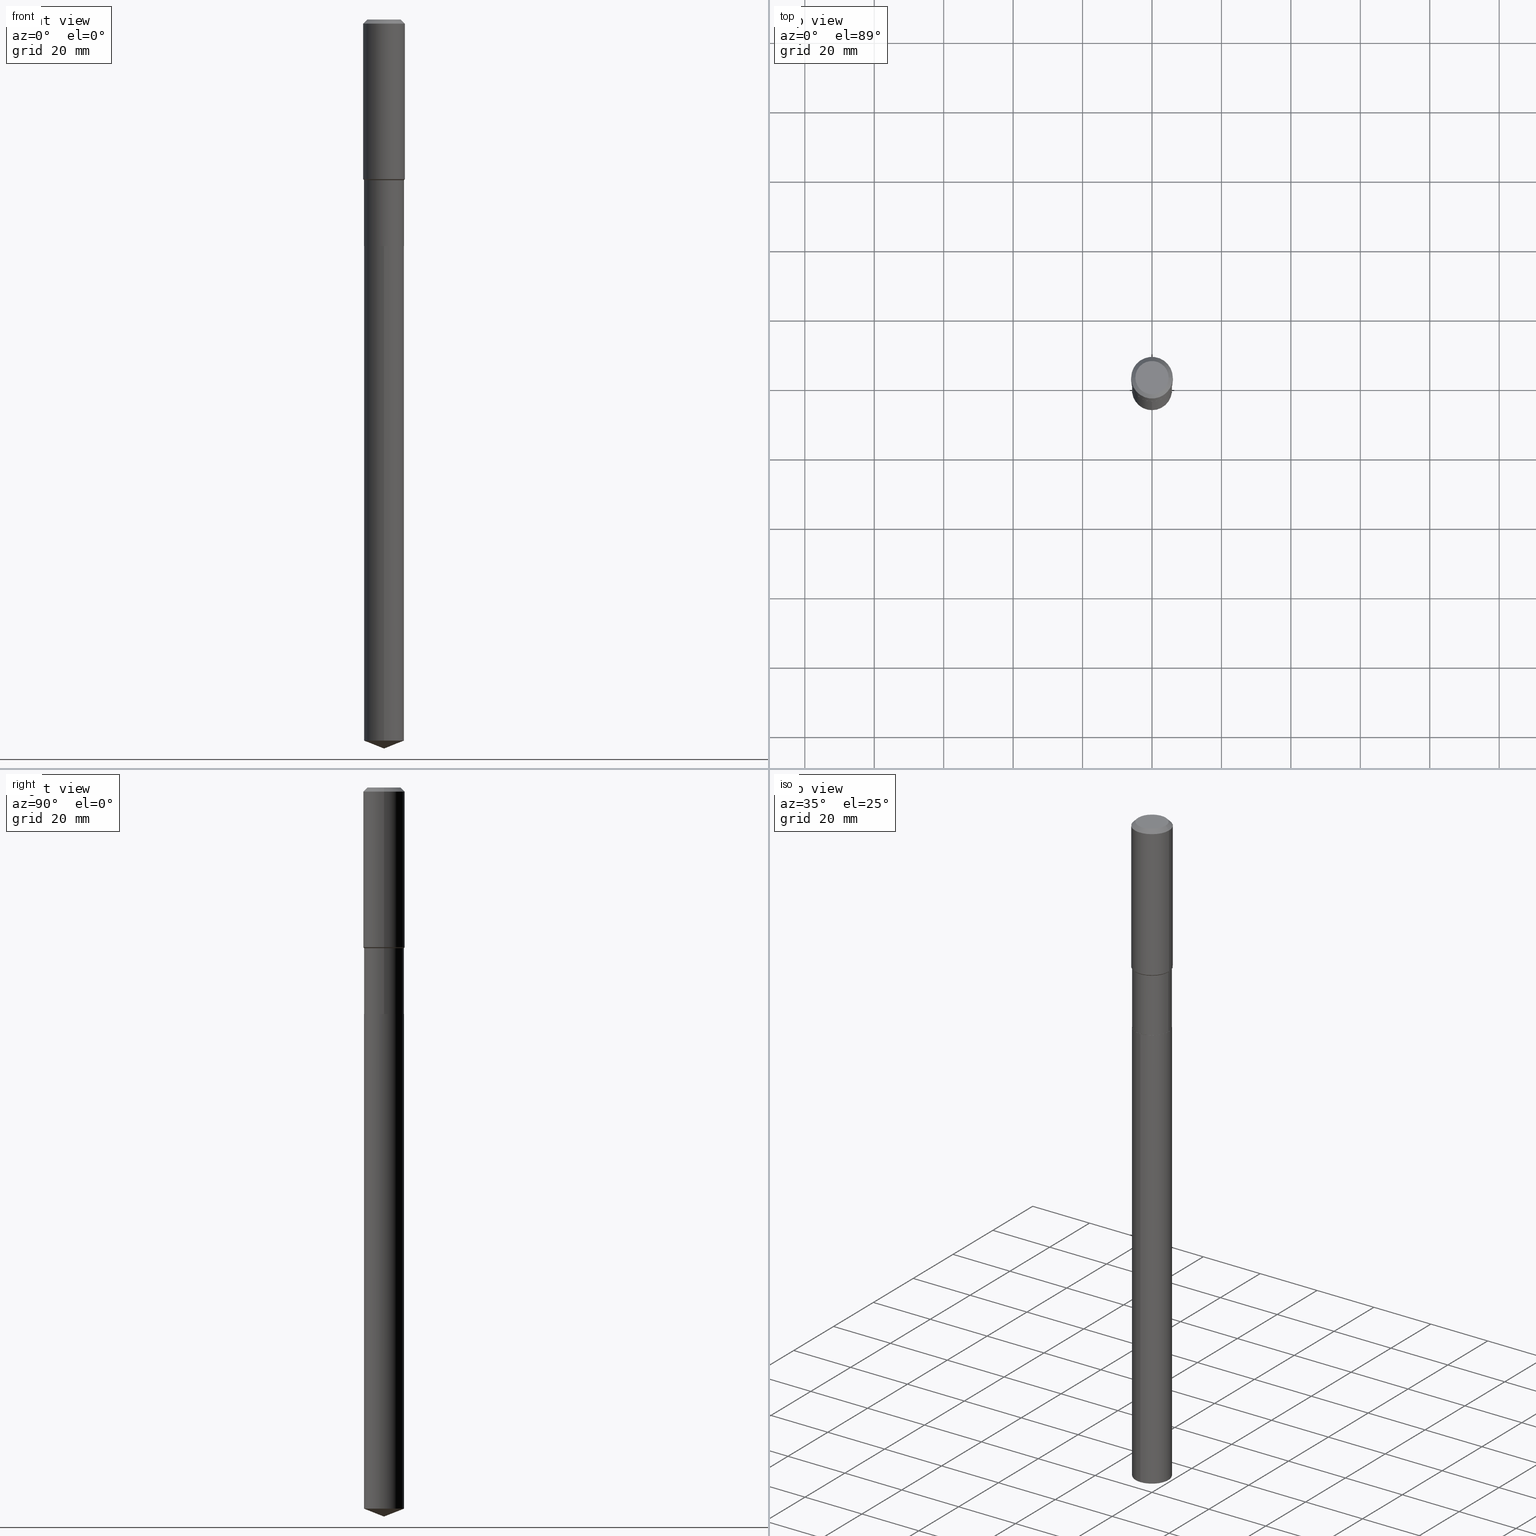
[diagram: canonical four-view strip — front | top / right | iso, engineering-drawing reading convention]
A machine part, canonical four-view strip (front | top / right | iso — engineering-drawing reading convention). The complete STEP part file that produces these views, byte-faithful:
ISO-10303-21;
HEADER;
FILE_DESCRIPTION (( 'STEP AP203' ),
    '1' );
FILE_NAME ('66794.STEP',
    '2024-04-25T06:26:00',
    ( '' ),
    ( '' ),
    'SwSTEP 2.0',
    'SolidWorks 2023',
    '' );
FILE_SCHEMA (( 'CONFIG_CONTROL_DESIGN' ));
ENDSEC;

DATA;
#1 = VERTEX_POINT ( 'NONE', #355 ) ;
#2 = CARTESIAN_POINT ( 'NONE',  ( -0.2263999999999998791, -4.753159393745229384E-15, -1.822100000000000275 ) ) ;
#3 = VERTEX_POINT ( 'NONE', #155 ) ;
#4 = VERTEX_POINT ( 'NONE', #308 ) ;
#5 = ADVANCED_FACE ( 'NONE', ( #460 ), #123, .T. ) ;
#6 = VERTEX_POINT ( 'NONE', #392 ) ;
#7 = EDGE_CURVE ( 'NONE', #163, #4, #47, .T. ) ;
#8 = DIRECTION ( 'NONE',  ( 2.445468806185136597E-29, -3.491481338843145583E-15, -1.000000000000000000 ) ) ;
#9 = CARTESIAN_POINT ( 'NONE',  ( 6.281675722447761474E-29, -8.968568115086388210E-15, -2.568700000000000205 ) ) ;
#10 = ADVANCED_BREP_SHAPE_REPRESENTATION ( '66794', ( #56, #230, #295 ), #210 ) ;
#11 = DIRECTION ( 'NONE',  ( -2.445481556472123923E-29, 3.491463079706479034E-15, 1.000000000000000000 ) ) ;
#12 = FACE_OUTER_BOUND ( 'NONE', #461, .T. ) ;
#13 = CARTESIAN_POINT ( 'NONE',  ( -7.605959268503619356E-28, 1.085917127120097118E-13, 31.10207874015748430 ) ) ;
#14 = APPLICATION_PROTOCOL_DEFINITION ( 'international standard', 'config_control_design', 1994, #254 ) ;
#15 = DIRECTION ( 'NONE',  ( -2.445481556472123923E-29, 3.491463079706478639E-15, 1.000000000000000000 ) ) ;
#16 = CIRCLE ( 'NONE', #430, 0.2258999999999999619 ) ;
#17 = CALENDAR_DATE ( 2024, 25, 4 ) ;
#18 = EDGE_CURVE ( 'NONE', #157, #276, #427, .T. ) ;
#19 = DIRECTION ( 'NONE',  ( -6.982962677686265922E-15, -1.000000000000000000, 4.826586561244282169E-15 ) ) ;
#20 = DIRECTION ( 'NONE',  ( -6.982962677686265922E-15, -1.000000000000000000, 2.413293280622141084E-15 ) ) ;
#21 = CARTESIAN_POINT ( 'NONE',  ( 6.282898456850853154E-29, -8.970313855755810503E-15, -2.569200000000000372 ) ) ;
#22 = VERTEX_POINT ( 'NONE', #170 ) ;
#23 = DIRECTION ( 'NONE',  ( -2.445468806185136597E-29, 3.491481338843145583E-15, 1.000000000000000000 ) ) ;
#24 = AXIS2_PLACEMENT_3D ( 'NONE', #215, #178, #469 ) ;
#25 = AXIS2_PLACEMENT_3D ( 'NONE', #455, #385, #452 ) ;
#26 = EDGE_CURVE ( 'NONE', #3, #111, #393, .T. ) ;
#27 = APPROVAL_STATUS ( 'not_yet_approved' ) ;
#28 = FACE_OUTER_BOUND ( 'NONE', #190, .T. ) ;
#29 = PERSON_AND_ORGANIZATION ( #199, #359 ) ;
#30 = COORDINATED_UNIVERSAL_TIME_OFFSET ( 5, 0, .BEHIND. ) ;
#31 = AXIS2_PLACEMENT_3D ( 'NONE', #327, #395, #52 ) ;
#32 = DIRECTION ( 'NONE',  ( -2.445468806185136597E-29, 3.491481338843145583E-15, 1.000000000000000000 ) ) ;
#33 = ORIENTED_EDGE ( 'NONE', *, *, #433, .T. ) ;
#34 = APPROVAL_DATE_TIME ( #192, #185 ) ;
#35 = PLANE ( 'NONE',  #109 ) ;
#36 = ORIENTED_EDGE ( 'NONE', *, *, #463, .F. ) ;
#37 = CARTESIAN_POINT ( 'NONE',  ( -4.713871149261273121E-47, 6.730158695841826722E-33, 1.927594061857931128E-18 ) ) ;
#38 = ORIENTED_EDGE ( 'NONE', *, *, #488, .T. ) ;
#39 = DIRECTION ( 'NONE',  ( -6.982962677686265922E-15, -1.000000000000000000, 2.413293280622141084E-15 ) ) ;
#40 = VECTOR ( 'NONE', #440, 39.37007874015748143 ) ;
#41 = ORIENTED_EDGE ( 'NONE', *, *, #133, .T. ) ;
#42 = EDGE_CURVE ( 'NONE', #453, #4, #459, .T. ) ;
#43 = DIRECTION ( 'NONE',  ( 1.000000000000000000, -6.982962677686267499E-15, 0.000000000000000000 ) ) ;
#44 = ORIENTED_EDGE ( 'NONE', *, *, #405, .F. ) ;
#45 = LINE ( 'NONE', #470, #60 ) ;
#46 = DIRECTION ( 'NONE',  ( 2.445468806185136597E-29, -3.491481338843145583E-15, -1.000000000000000000 ) ) ;
#47 = LINE ( 'NONE', #321, #376 ) ;
#48 = AXIS2_PLACEMENT_3D ( 'NONE', #218, #322, #59 ) ;
#49 = CONICAL_SURFACE ( 'NONE', #389, 0.2263999999999998791, 0.7853981633974518317 ) ;
#50 = LINE ( 'NONE', #212, #472 ) ;
#51 = LOCAL_TIME ( 2, 26, 0.000000000000000000, #30 ) ;
#52 = DIRECTION ( 'NONE',  ( 1.000000000000000000, -6.982962677686266711E-15, 0.000000000000000000 ) ) ;
#53 = DIRECTION ( 'NONE',  ( -2.445468806185136597E-29, 3.491481338843145583E-15, 1.000000000000000000 ) ) ;
#54 = DIRECTION ( 'NONE',  ( -2.445481556472123923E-29, 3.491463079706478639E-15, 1.000000000000000000 ) ) ;
#55 = CARTESIAN_POINT ( 'NONE',  ( -0.2263999999999998791, -6.056529377535375225E-15, -1.822100000000000275 ) ) ;
#56 = MANIFOLD_SOLID_BREP ( 'Body-Move/Copy2[1]', #184 ) ;
#57 = DIRECTION ( 'NONE',  ( -2.445468806185136597E-29, 3.491481338843145583E-15, 1.000000000000000000 ) ) ;
#58 = PERSON_AND_ORGANIZATION_ROLE ( 'creator' ) ;
#59 = DIRECTION ( 'NONE',  ( 1.000000000000000000, -6.982962677686266711E-15, 4.876185090822587894E-29 ) ) ;
#60 = VECTOR ( 'NONE', #330, 39.37007874015748143 ) ;
#61 =( LENGTH_UNIT ( ) NAMED_UNIT ( * ) SI_UNIT ( $, .METRE. ) );
#62 = EDGE_CURVE ( 'NONE', #1, #6, #357, .T. ) ;
#63 = FACE_OUTER_BOUND ( 'NONE', #278, .T. ) ;
#64 = DIRECTION ( 'NONE',  ( -6.982962677686265922E-15, -1.000000000000000000, 2.413293280622141084E-15 ) ) ;
#65 = EDGE_LOOP ( 'NONE', ( #267, #315, #350, #370 ) ) ;
#66 = COORDINATED_UNIVERSAL_TIME_OFFSET ( 5, 0, .BEHIND. ) ;
#67 = DIRECTION ( 'NONE',  ( 1.000000000000000000, -6.982962677686267499E-15, 0.000000000000000000 ) ) ;
#68 = APPROVAL ( #473, 'UNSPECIFIED' ) ;
#69 = AXIS2_PLACEMENT_3D ( 'NONE', #101, #23, #380 ) ;
#70 = AXIS2_PLACEMENT_3D ( 'NONE', #207, #57, #173 ) ;
#71 = EDGE_LOOP ( 'NONE', ( #225, #388 ) ) ;
#72 = VERTEX_POINT ( 'NONE', #181 ) ;
#73 = EDGE_CURVE ( 'NONE', #111, #188, #468, .T. ) ;
#74 = DIRECTION ( 'NONE',  ( 1.000000000000000000, -6.982962677686271444E-15, 0.000000000000000000 ) ) ;
#75 = EDGE_LOOP ( 'NONE', ( #238, #390, #239, #206 ) ) ;
#76 = DATE_TIME_ROLE ( 'classification_date' ) ;
#77 = ADVANCED_FACE ( 'NONE', ( #474 ), #358, .T. ) ;
#78 = DIRECTION ( 'NONE',  ( -2.445481556472123923E-29, 3.491463079706478639E-15, 1.000000000000000000 ) ) ;
#79 = ORIENTED_EDGE ( 'NONE', *, *, #42, .F. ) ;
#80 = DIRECTION ( 'NONE',  ( -2.445481556472123923E-29, 3.491463079706478639E-15, 1.000000000000000000 ) ) ;
#81 = ORIENTED_EDGE ( 'NONE', *, *, #252, .T. ) ;
#82 = EDGE_CURVE ( 'NONE', #22, #276, #138, .T. ) ;
#83 = ORIENTED_EDGE ( 'NONE', *, *, #405, .T. ) ;
#84 = AXIS2_PLACEMENT_3D ( 'NONE', #9, #53, #205 ) ;
#85 = LOCAL_TIME ( 2, 26, 0.000000000000000000, #484 ) ;
#86 = ORIENTED_EDGE ( 'NONE', *, *, #275, .T. ) ;
#87 = DIRECTION ( 'NONE',  ( -2.445468806185136597E-29, 3.491481338843145583E-15, 1.000000000000000000 ) ) ;
#88 = DIRECTION ( 'NONE',  ( 1.000000000000000000, -6.982962677686269077E-15, 0.000000000000000000 ) ) ;
#89 = DIRECTION ( 'NONE',  ( -2.445468806185136597E-29, 3.491481338843145583E-15, 1.000000000000000000 ) ) ;
#90 = CARTESIAN_POINT ( 'NONE',  ( 6.282898456850853154E-29, -8.970313855755810503E-15, -2.569200000000000372 ) ) ;
#91 = CARTESIAN_POINT ( 'NONE',  ( 6.282898456850853154E-29, -8.970313855755810503E-15, -2.569200000000000372 ) ) ;
#92 = CONICAL_SURFACE ( 'NONE', #301, 0.2263999999999998791, 0.7853981633974518317 ) ;
#93 = DIRECTION ( 'NONE',  ( -2.445468806185136877E-29, 3.491481338843145188E-15, 1.000000000000000000 ) ) ;
#94 = CLOSED_SHELL ( 'NONE', ( #228, #409, #242, #421, #5, #339, #347, #483, #77, #284, #110, #141 ) ) ;
#95 = PERSON_AND_ORGANIZATION_ROLE ( 'design_owner' ) ;
#96 = DIRECTION ( 'NONE',  ( -2.445468806185136597E-29, 3.491481338843145583E-15, 1.000000000000000000 ) ) ;
#97 = DATE_AND_TIME ( #435, #187 ) ;
#98 = EDGE_CURVE ( 'NONE', #111, #348, #415, .T. ) ;
#99 = FACE_OUTER_BOUND ( 'NONE', #419, .T. ) ;
#100 = DIRECTION ( 'NONE',  ( -2.445468806185136597E-29, 3.491481338843145583E-15, 1.000000000000000000 ) ) ;
#101 = CARTESIAN_POINT ( 'NONE',  ( 0.000000000000000000, 0.000000000000000000, 0.000000000000000000 ) ) ;
#102 = CIRCLE ( 'NONE', #25, 0.2362000000000002153 ) ;
#103 = FACE_OUTER_BOUND ( 'NONE', #336, .T. ) ;
#104 = ORIENTED_EDGE ( 'NONE', *, *, #18, .T. ) ;
#105 = PERSON_AND_ORGANIZATION_ROLE ( 'design_supplier' ) ;
#106 = ORIENTED_EDGE ( 'NONE', *, *, #82, .F. ) ;
#107 = ORIENTED_EDGE ( 'NONE', *, *, #62, .T. ) ;
#108 = CIRCLE ( 'NONE', #446, 0.2263999999999999624 ) ;
#109 = AXIS2_PLACEMENT_3D ( 'NONE', #37, #271, #383 ) ;
#110 = ADVANCED_FACE ( 'NONE', ( #134 ), #171, .F. ) ;
#111 = VERTEX_POINT ( 'NONE', #401 ) ;
#112 = DATE_AND_TIME ( #303, #439 ) ;
#113 = CARTESIAN_POINT ( 'NONE',  ( 2.021917599283686669E-28, -2.886751056576102070E-14, -8.268000000000000682 ) ) ;
#114 = DIRECTION ( 'NONE',  ( 1.000000000000000000, -6.982962677686267499E-15, 0.000000000000000000 ) ) ;
#115 = ORIENTED_EDGE ( 'NONE', *, *, #425, .T. ) ;
#116 = CONICAL_SURFACE ( 'NONE', #310, 0.2258999999999999619, 0.7853981633972775267 ) ;
#117 = APPROVAL_PERSON_ORGANIZATION ( #397, #68, #132 ) ;
#118 = DIRECTION ( 'NONE',  ( 1.000000000000000000, -6.982962677686271444E-15, 0.000000000000000000 ) ) ;
#119 = ORIENTED_EDGE ( 'NONE', *, *, #62, .F. ) ;
#120 = ORIENTED_EDGE ( 'NONE', *, *, #172, .T. ) ;
#121 = EDGE_LOOP ( 'NONE', ( #302, #204, #311 ) ) ;
#122 = CIRCLE ( 'NONE', #31, 0.2361999999999999933 ) ;
#123 = CYLINDRICAL_SURFACE ( 'NONE', #270, 0.2263999999999999346 ) ;
#124 = CARTESIAN_POINT ( 'NONE',  ( 4.455888711749938171E-29, -6.361828147506095741E-15, -1.822100000000000275 ) ) ;
#125 = CARTESIAN_POINT ( 'NONE',  ( 1.155239464041865331E-30, -1.649375784469511612E-16, -0.04724000000000027483 ) ) ;
#126 = PRODUCT_DEFINITION ( 'UNKNOWN', '', #179, #235 ) ;
#127 = CARTESIAN_POINT ( 'NONE',  ( -1.580942750227970651E-15, -0.2264000000000285229, -8.178818668320777974 ) ) ;
#128 = CARTESIAN_POINT ( 'NONE',  ( -0.2258999999999999619, -7.365197815673745834E-15, -2.569200000000000372 ) ) ;
#129 = LINE ( 'NONE', #480, #146 ) ;
#130 = VECTOR ( 'NONE', #164, 39.37007874015748143 ) ;
#131 = DIRECTION ( 'NONE',  ( -0.7071067811864267805, 7.493145998869918709E-15, 0.7071067811866682540 ) ) ;
#132 = APPROVAL_ROLE ( '' ) ;
#133 = EDGE_CURVE ( 'NONE', #276, #458, #50, .T. ) ;
#134 = FACE_OUTER_BOUND ( 'NONE', #71, .T. ) ;
#135 = DATE_TIME_ROLE ( 'creation_date' ) ;
#136 = FACE_OUTER_BOUND ( 'NONE', #65, .T. ) ;
#137 = CARTESIAN_POINT ( 'NONE',  ( 0.000000000000000000, 0.000000000000000000, 0.000000000000000000 ) ) ;
#138 = CIRCLE ( 'NONE', #408, 0.2263999999999999624 ) ;
#139 = LINE ( 'NONE', #296, #40 ) ;
#140 = CONICAL_SURFACE ( 'NONE', #420, 0.2361999999999999933, 0.7853981633974452814 ) ;
#141 = ADVANCED_FACE ( 'NONE', ( #136 ), #116, .T. ) ;
#142 = ORIENTED_EDGE ( 'NONE', *, *, #7, .T. ) ;
#143 = PERSON_AND_ORGANIZATION ( #199, #359 ) ;
#144 = PERSON_AND_ORGANIZATION ( #199, #359 ) ;
#145 = EDGE_CURVE ( 'NONE', #1, #229, #246, .T. ) ;
#146 = VECTOR ( 'NONE', #174, 39.37007874015748143 ) ;
#147 = SECURITY_CLASSIFICATION ( '', '', #337 ) ;
#148 = CYLINDRICAL_SURFACE ( 'NONE', #375, 0.2263999999999999624 ) ;
#149 = ADVANCED_FACE ( 'NONE', ( #99 ), #424, .F. ) ;
#150 = UNCERTAINTY_MEASURE_WITH_UNIT (LENGTH_MEASURE( 1.000000000000000082E-05 ), #213, 'distance_accuracy_value', 'NONE');
#151 = ORIENTED_EDGE ( 'NONE', *, *, #42, .T. ) ;
#152 = PERSON_AND_ORGANIZATION_ROLE ( 'classification_officer' ) ;
#153 = CYLINDRICAL_SURFACE ( 'NONE', #334, 0.2263999999999999624 ) ;
#154 = LINE ( 'NONE', #237, #403 ) ;
#155 = CARTESIAN_POINT ( 'NONE',  ( 2.021924150891152218E-28, -2.886741674301316684E-14, -8.268000000000000682 ) ) ;
#156 = FACE_OUTER_BOUND ( 'NONE', #297, .T. ) ;
#157 = VERTEX_POINT ( 'NONE', #471 ) ;
#158 = ADVANCED_FACE ( 'NONE', ( #285 ), #262, .T. ) ;
#159 = VECTOR ( 'NONE', #11, 39.37007874015748143 ) ;
#160 = AXIS2_PLACEMENT_3D ( 'NONE', #369, #331, #478 ) ;
#161 = DIRECTION ( 'NONE',  ( -1.000000000000000000, 6.982962677686266711E-15, 0.000000000000000000 ) ) ;
#162 = ORIENTED_EDGE ( 'NONE', *, *, #133, .F. ) ;
#163 = VERTEX_POINT ( 'NONE', #363 ) ;
#164 = DIRECTION ( 'NONE',  ( 0.7071067811865453523, -7.319954787623248157E-15, -0.7071067811865496822 ) ) ;
#165 = ADVANCED_FACE ( 'NONE', ( #364 ), #387, .T. ) ;
#166 = EDGE_LOOP ( 'NONE', ( #86, #413, #317, #236 ) ) ;
#167 = AXIS2_PLACEMENT_3D ( 'NONE', #462, #87, #391 ) ;
#168 = CC_DESIGN_APPROVAL ( #185, ( #179 ) ) ;
#169 = EDGE_CURVE ( 'NONE', #188, #72, #108, .T. ) ;
#170 = CARTESIAN_POINT ( 'NONE',  ( 0.2263999999999999624, -1.054951086531456022E-14, -2.568700000000000205 ) ) ;
#171 = PLANE ( 'NONE',  #456 ) ;
#172 = EDGE_CURVE ( 'NONE', #4, #338, #154, .T. ) ;
#173 = DIRECTION ( 'NONE',  ( 1.000000000000000000, -6.982962677686266711E-15, 0.000000000000000000 ) ) ;
#174 = DIRECTION ( 'NONE',  ( 0.7071067811864267805, -2.468850131080992517E-15, 0.7071067811866682540 ) ) ;
#175 = EDGE_CURVE ( 'NONE', #163, #458, #288, .T. ) ;
#176 = AXIS2_PLACEMENT_3D ( 'NONE', #13, #15, #326 ) ;
#177 = CONICAL_SURFACE ( 'NONE', #193, 0.2258999999999999619, 0.7853981633972775267 ) ;
#178 = DIRECTION ( 'NONE',  ( 2.445481556472123082E-29, -3.491463079706479034E-15, -1.000000000000000000 ) ) ;
#179 = PRODUCT_DEFINITION_FORMATION_WITH_SPECIFIED_SOURCE ( 'ANY', '', #486, .NOT_KNOWN. ) ;
#180 = CARTESIAN_POINT ( 'NONE',  ( -9.427742298522546243E-47, 1.346031739168365344E-32, 3.855188123715862256E-18 ) ) ;
#181 = CARTESIAN_POINT ( 'NONE',  ( -1.580942750228107715E-15, -0.2264000000000089552, -2.569199999999999928 ) ) ;
#182 = CARTESIAN_POINT ( 'NONE',  ( -0.2362000000000001043, 1.678301941865357380E-15, -1.161852468318209317E-29 ) ) ;
#183 = ORIENTED_EDGE ( 'NONE', *, *, #26, .F. ) ;
#184 = CLOSED_SHELL ( 'NONE', ( #428, #165, #158, #281, #149 ) ) ;
#185 = APPROVAL ( #226, 'UNSPECIFIED' ) ;
#186 = CYLINDRICAL_SURFACE ( 'NONE', #69, 0.2362000000000001043 ) ;
#187 = LOCAL_TIME ( 2, 26, 0.000000000000000000, #290 ) ;
#188 = VERTEX_POINT ( 'NONE', #450 ) ;
#189 = CALENDAR_DATE ( 2024, 25, 4 ) ;
#190 = EDGE_LOOP ( 'NONE', ( #342, #441, #386, #374 ) ) ;
#191 = APPROVAL_ROLE ( '' ) ;
#192 = DATE_AND_TIME ( #189, #85 ) ;
#193 = AXIS2_PLACEMENT_3D ( 'NONE', #307, #264, #74 ) ;
#194 = DIRECTION ( 'NONE',  ( 1.000000000000000000, -6.982962677686271444E-15, 0.000000000000000000 ) ) ;
#195 = ORIENTED_EDGE ( 'NONE', *, *, #175, .F. ) ;
#196 = DIRECTION ( 'NONE',  ( -2.445468806185136877E-29, 3.491481338843145188E-15, 1.000000000000000000 ) ) ;
#197 = CC_DESIGN_PERSON_AND_ORGANIZATION_ASSIGNMENT ( #144, #105, ( #179 ) ) ;
#198 = ORIENTED_EDGE ( 'NONE', *, *, #314, .F. ) ;
#199 = PERSON ( 'UNSPECIFIED', 'UNSPECIFIED', 'UNSPECIFIED', ('UNSPECIFIED'), ('UNSPECIFIED'), ('UNSPECIFIED') ) ;
#200 = CARTESIAN_POINT ( 'NONE',  ( 6.282898456850853154E-29, -8.970313855755810503E-15, -2.569200000000000372 ) ) ;
#201 = ORIENTED_EDGE ( 'NONE', *, *, #425, .F. ) ;
#202 = AXIS2_PLACEMENT_3D ( 'NONE', #125, #8, #368 ) ;
#203 = CIRCLE ( 'NONE', #300, 0.2263999999999998791 ) ;
#204 = ORIENTED_EDGE ( 'NONE', *, *, #26, .T. ) ;
#205 = DIRECTION ( 'NONE',  ( 1.000000000000000000, -6.982962677686269077E-15, 0.000000000000000000 ) ) ;
#206 = ORIENTED_EDGE ( 'NONE', *, *, #7, .F. ) ;
#207 = CARTESIAN_POINT ( 'NONE',  ( 4.431923117449323073E-29, -6.327611630385432693E-15, -1.812300000000000022 ) ) ;
#208 = AXIS2_PLACEMENT_3D ( 'NONE', #399, #396, #19 ) ;
#209 = FACE_OUTER_BOUND ( 'NONE', #407, .T. ) ;
#210 =( GEOMETRIC_REPRESENTATION_CONTEXT ( 3 ) GLOBAL_UNCERTAINTY_ASSIGNED_CONTEXT ( ( #150 ) ) GLOBAL_UNIT_ASSIGNED_CONTEXT ( ( #213, #371, #477 ) ) REPRESENTATION_CONTEXT ( 'NONE', 'WORKASPACE' ) );
#211 = APPROVAL_PERSON_ORGANIZATION ( #29, #185, #191 ) ;
#212 = CARTESIAN_POINT ( 'NONE',  ( -0.2263999999999999346, 1.608668753760866356E-15, -1.113646904433710280E-29 ) ) ;
#213 =( CONVERSION_BASED_UNIT ( 'INCH', #253 ) LENGTH_UNIT ( ) NAMED_UNIT ( #467 ) );
#214 = DIRECTION ( 'NONE',  ( -6.982962677686265922E-15, -1.000000000000000000, 3.498627837349988051E-15 ) ) ;
#215 = CARTESIAN_POINT ( 'NONE',  ( 6.282898456850853154E-29, -8.970313855755810503E-15, -2.569200000000000372 ) ) ;
#216 = APPLICATION_PROTOCOL_DEFINITION ( 'international standard', 'config_control_design', 1994, #329 ) ;
#217 = AXIS2_PLACEMENT_3D ( 'NONE', #180, #437, #402 ) ;
#218 = CARTESIAN_POINT ( 'NONE',  ( -9.427742298522546243E-47, 1.346031739168365344E-32, 3.855188123715862256E-18 ) ) ;
#219 = CYLINDRICAL_SURFACE ( 'NONE', #160, 0.2263999999999999346 ) ;
#220 = EDGE_LOOP ( 'NONE', ( #224, #41, #195, #465 ) ) ;
#221 = DIRECTION ( 'NONE',  ( 1.000000000000000000, 0.000000000000000000, 0.000000000000000000 ) ) ;
#222 = EDGE_CURVE ( 'NONE', #3, #348, #412, .T. ) ;
#223 = DIRECTION ( 'NONE',  ( -2.445468806185136877E-29, 3.491481338843145188E-15, 1.000000000000000000 ) ) ;
#224 = ORIENTED_EDGE ( 'NONE', *, *, #82, .T. ) ;
#225 = ORIENTED_EDGE ( 'NONE', *, *, #252, .F. ) ;
#226 = APPROVAL_STATUS ( 'not_yet_approved' ) ;
#227 = VECTOR ( 'NONE', #131, 39.37007874015748143 ) ;
#228 = ADVANCED_FACE ( 'NONE', ( #156 ), #177, .T. ) ;
#229 = VERTEX_POINT ( 'NONE', #231 ) ;
#230 = MANIFOLD_SOLID_BREP ( 'Body-Move/Copy2[2]', #94 ) ;
#231 = CARTESIAN_POINT ( 'NONE',  ( 0.1889600000000000168, -1.540873453589747738E-15, 3.855188123725863225E-18 ) ) ;
#232 = ORIENTED_EDGE ( 'NONE', *, *, #222, .T. ) ;
#233 = APPROVAL_PERSON_ORGANIZATION ( #306, #313, #379 ) ;
#234 = DIRECTION ( 'NONE',  ( -6.982962677686265922E-15, -1.000000000000000000, 2.413293280622141084E-15 ) ) ;
#235 = DESIGN_CONTEXT ( 'detailed design', #329, 'design' ) ;
#236 = ORIENTED_EDGE ( 'NONE', *, *, #172, .F. ) ;
#237 = CARTESIAN_POINT ( 'NONE',  ( 0.2362000000000001043, -1.649375784469496920E-15, 1.151752954443000508E-29 ) ) ;
#238 = ORIENTED_EDGE ( 'NONE', *, *, #175, .T. ) ;
#239 = ORIENTED_EDGE ( 'NONE', *, *, #275, .F. ) ;
#240 = AXIS2_PLACEMENT_3D ( 'NONE', #343, #335, #266 ) ;
#241 = ORIENTED_EDGE ( 'NONE', *, *, #344, .T. ) ;
#242 = ADVANCED_FACE ( 'NONE', ( #482 ), #186, .T. ) ;
#243 = DIRECTION ( 'NONE',  ( -0.7071067811865453523, 2.468850131082234184E-15, -0.7071067811865496822 ) ) ;
#244 = DIRECTION ( 'NONE',  ( -2.445468806185136597E-29, 3.491481338843145583E-15, 1.000000000000000000 ) ) ;
#245 = DIRECTION ( 'NONE',  ( 1.000000000000000000, -6.982962677686266711E-15, 4.876176775795935793E-29 ) ) ;
#246 = CIRCLE ( 'NONE', #48, 0.1889600000000000168 ) ;
#247 = EDGE_CURVE ( 'NONE', #348, #111, #340, .T. ) ;
#248 = CARTESIAN_POINT ( 'NONE',  ( -7.605959268503619356E-28, 1.085917127120097118E-13, 31.10207874015748430 ) ) ;
#249 = DIRECTION ( 'NONE',  ( 1.000000000000000000, -6.982962677686271444E-15, 0.000000000000000000 ) ) ;
#250 = APPROVAL_DATE_TIME ( #97, #68 ) ;
#251 = DIRECTION ( 'NONE',  ( -2.438088387897960049E-29, 3.491481338843145188E-15, 1.000000000000000000 ) ) ;
#252 = EDGE_CURVE ( 'NONE', #353, #157, #16, .T. ) ;
#253 = LENGTH_MEASURE_WITH_UNIT ( LENGTH_MEASURE( 0.02539999999999999897 ), #61 );
#254 = APPLICATION_CONTEXT ( 'configuration controlled 3d designs of mechanical parts and assemblies' ) ;
#255 = AXIS2_PLACEMENT_3D ( 'NONE', #431, #100, #245 ) ;
#256 = CARTESIAN_POINT ( 'NONE',  ( -0.2263999999999999624, -6.056529377535375225E-15, -2.568700000000000205 ) ) ;
#257 = DIRECTION ( 'NONE',  ( 0.000000000000000000, 0.000000000000000000, 1.000000000000000000 ) ) ;
#258 = CARTESIAN_POINT ( 'NONE',  ( 4.455888711749938171E-29, -6.361828147506095741E-15, -1.822100000000000275 ) ) ;
#259 = ORIENTED_EDGE ( 'NONE', *, *, #98, .T. ) ;
#260 = ORIENTED_EDGE ( 'NONE', *, *, #145, .T. ) ;
#261 = CC_DESIGN_DATE_AND_TIME_ASSIGNMENT ( #112, #76, ( #147 ) ) ;
#262 = CONICAL_SURFACE ( 'NONE', #323, 99.94676754584043010, 1.195550537616121067 ) ;
#263 = PRODUCT_RELATED_PRODUCT_CATEGORY ( 'detail', '', ( #486 ) ) ;
#264 = DIRECTION ( 'NONE',  ( -2.445468806185136597E-29, 3.491481338843145583E-15, 1.000000000000000000 ) ) ;
#265 = SHAPE_DEFINITION_REPRESENTATION ( #305, #10 ) ;
#266 = DIRECTION ( 'NONE',  ( -6.982962677686265922E-15, -1.000000000000000000, 4.826586561244282169E-15 ) ) ;
#267 = ORIENTED_EDGE ( 'NONE', *, *, #18, .F. ) ;
#268 = VECTOR ( 'NONE', #196, 39.37007874015748143 ) ;
#269 = CC_DESIGN_PERSON_AND_ORGANIZATION_ASSIGNMENT ( #298, #95, ( #486 ) ) ;
#270 = AXIS2_PLACEMENT_3D ( 'NONE', #280, #244, #429 ) ;
#271 = DIRECTION ( 'NONE',  ( 2.438088387897960049E-29, -3.491481338843145188E-15, -1.000000000000000000 ) ) ;
#272 = ORIENTED_EDGE ( 'NONE', *, *, #454, .F. ) ;
#273 = DIRECTION ( 'NONE',  ( -2.445481556472123923E-29, 3.491463079706478639E-15, 1.000000000000000000 ) ) ;
#274 = DIRECTION ( 'NONE',  ( -2.445468806185136597E-29, 3.491481338843145583E-15, 1.000000000000000000 ) ) ;
#275 = EDGE_CURVE ( 'NONE', #4, #453, #102, .T. ) ;
#276 = VERTEX_POINT ( 'NONE', #256 ) ;
#277 = EDGE_CURVE ( 'NONE', #157, #353, #447, .T. ) ;
#278 = EDGE_LOOP ( 'NONE', ( #162, #444, #449, #201 ) ) ;
#279 = CARTESIAN_POINT ( 'NONE',  ( 1.155239464041865331E-30, -1.649375784469511612E-16, -0.04724000000000027483 ) ) ;
#280 = CARTESIAN_POINT ( 'NONE',  ( 0.000000000000000000, 0.000000000000000000, 0.000000000000000000 ) ) ;
#281 = ADVANCED_FACE ( 'NONE', ( #487 ), #148, .T. ) ;
#282 = DIRECTION ( 'NONE',  ( 1.000000000000000000, -6.982962677686267499E-15, 0.000000000000000000 ) ) ;
#283 = CARTESIAN_POINT ( 'NONE',  ( 6.281675722447761474E-29, -8.968568115086388210E-15, -2.568700000000000205 ) ) ;
#284 = ADVANCED_FACE ( 'NONE', ( #404 ), #35, .F. ) ;
#285 = FACE_OUTER_BOUND ( 'NONE', #332, .T. ) ;
#286 = CYLINDRICAL_SURFACE ( 'NONE', #255, 0.2362000000000001043 ) ;
#287 = VECTOR ( 'NONE', #320, 39.37007874015748143 ) ;
#288 = CIRCLE ( 'NONE', #325, 0.2263999999999998791 ) ;
#289 = CARTESIAN_POINT ( 'NONE',  ( 2.021924208341016274E-28, -2.886741674301316684E-14, -8.268000000000000682 ) ) ;
#290 = COORDINATED_UNIVERSAL_TIME_OFFSET ( 5, 0, .BEHIND. ) ;
#291 = DIRECTION ( 'NONE',  ( 1.000000000000000000, -6.982962677686265922E-15, 4.876176775795935793E-29 ) ) ;
#292 = MECHANICAL_CONTEXT ( 'NONE', #254, 'mechanical' ) ;
#293 = DIRECTION ( 'NONE',  ( -0.7071067811865500152, 7.493145998870363626E-15, 0.7071067811865450192 ) ) ;
#294 = DIRECTION ( 'NONE',  ( -2.445481556472123923E-29, 3.491463079706478639E-15, 1.000000000000000000 ) ) ;
#295 = AXIS2_PLACEMENT_3D ( 'NONE', #137, #257, #221 ) ;
#296 = CARTESIAN_POINT ( 'NONE',  ( -1.580942750228107715E-15, -0.2264000000000089552, -2.569199999999999928 ) ) ;
#297 = EDGE_LOOP ( 'NONE', ( #81, #104, #106, #272 ) ) ;
#298 = PERSON_AND_ORGANIZATION ( #199, #359 ) ;
#299 = DATE_AND_TIME ( #451, #51 ) ;
#300 = AXIS2_PLACEMENT_3D ( 'NONE', #426, #89, #67 ) ;
#301 = AXIS2_PLACEMENT_3D ( 'NONE', #124, #274, #282 ) ;
#302 = ORIENTED_EDGE ( 'NONE', *, *, #222, .F. ) ;
#303 = CALENDAR_DATE ( 2024, 25, 4 ) ;
#304 = LINE ( 'NONE', #182, #268 ) ;
#305 = PRODUCT_DEFINITION_SHAPE ( 'NONE', 'NONE',  #126 ) ;
#306 = PERSON_AND_ORGANIZATION ( #199, #359 ) ;
#307 = CARTESIAN_POINT ( 'NONE',  ( 6.282898456850853154E-29, -8.970313855755810503E-15, -2.569200000000000372 ) ) ;
#308 = CARTESIAN_POINT ( 'NONE',  ( 0.2362000000000002153, -7.976987414854930007E-15, -1.812300000000000022 ) ) ;
#309 = DIRECTION ( 'NONE',  ( -2.445468806185136597E-29, 3.491481338843145583E-15, 1.000000000000000000 ) ) ;
#310 = AXIS2_PLACEMENT_3D ( 'NONE', #361, #436, #249 ) ;
#311 = ORIENTED_EDGE ( 'NONE', *, *, #247, .F. ) ;
#312 = VECTOR ( 'NONE', #293, 39.37007874015748143 ) ;
#313 = APPROVAL ( #27, 'UNSPECIFIED' ) ;
#314 = EDGE_CURVE ( 'NONE', #453, #6, #304, .T. ) ;
#315 = ORIENTED_EDGE ( 'NONE', *, *, #277, .T. ) ;
#316 = CARTESIAN_POINT ( 'NONE',  ( 6.282898456850853154E-29, -8.970313855755810503E-15, -2.569200000000000372 ) ) ;
#317 = ORIENTED_EDGE ( 'NONE', *, *, #485, .F. ) ;
#318 = ORIENTED_EDGE ( 'NONE', *, *, #485, .T. ) ;
#319 = CIRCLE ( 'NONE', #381, 0.2263999999999999624 ) ;
#320 = DIRECTION ( 'NONE',  ( 6.611014441532070533E-15, 0.9304175679820277933, 0.3665012267242890864 ) ) ;
#321 = CARTESIAN_POINT ( 'NONE',  ( 0.2263999999999998791, -7.942770897734265382E-15, -1.822100000000000275 ) ) ;
#322 = DIRECTION ( 'NONE',  ( -2.445468806185136597E-29, 3.491481338843145583E-15, 1.000000000000000000 ) ) ;
#323 = AXIS2_PLACEMENT_3D ( 'NONE', #248, #54, #214 ) ;
#324 = EDGE_CURVE ( 'NONE', #458, #453, #349, .T. ) ;
#325 = AXIS2_PLACEMENT_3D ( 'NONE', #417, #346, #114 ) ;
#326 = DIRECTION ( 'NONE',  ( -6.982962677686265922E-15, -1.000000000000000000, 3.498627837349988051E-15 ) ) ;
#327 = CARTESIAN_POINT ( 'NONE',  ( 1.155239464041865331E-30, -1.649375784469511612E-16, -0.04724000000000027483 ) ) ;
#328 = CARTESIAN_POINT ( 'NONE',  ( 1.608668753760929268E-15, 0.2263999999999909973, -2.569200000000001261 ) ) ;
#329 = APPLICATION_CONTEXT ( 'configuration controlled 3d designs of mechanical parts and assemblies' ) ;
#330 = DIRECTION ( 'NONE',  ( -2.445468806185136877E-29, 3.491481338843145188E-15, 1.000000000000000000 ) ) ;
#331 = DIRECTION ( 'NONE',  ( -2.445468806185136597E-29, 3.491481338843145583E-15, 1.000000000000000000 ) ) ;
#332 = EDGE_LOOP ( 'NONE', ( #183, #232, #418 ) ) ;
#333 = CARTESIAN_POINT ( 'NONE',  ( -0.2362000000000002153, -4.649309688520073932E-15, -1.812300000000000022 ) ) ;
#334 = AXIS2_PLACEMENT_3D ( 'NONE', #316, #273, #39 ) ;
#335 = DIRECTION ( 'NONE',  ( -2.445481556472123923E-29, 3.491463079706478639E-15, 1.000000000000000000 ) ) ;
#336 = EDGE_LOOP ( 'NONE', ( #479, #115, #142, #79 ) ) ;
#337 = SECURITY_CLASSIFICATION_LEVEL ( 'unclassified' ) ;
#338 = VERTEX_POINT ( 'NONE', #438 ) ;
#339 = ADVANCED_FACE ( 'NONE', ( #63 ), #219, .T. ) ;
#340 = CIRCLE ( 'NONE', #240, 0.2263999999999999624 ) ;
#341 = CC_DESIGN_APPROVAL ( #313, ( #147 ) ) ;
#342 = ORIENTED_EDGE ( 'NONE', *, *, #247, .T. ) ;
#343 = CARTESIAN_POINT ( 'NONE',  ( 2.000111744907103504E-28, -2.855609032743003206E-14, -8.178818668320779750 ) ) ;
#344 = EDGE_CURVE ( 'NONE', #348, #72, #139, .T. ) ;
#345 = ORIENTED_EDGE ( 'NONE', *, *, #145, .F. ) ;
#346 = DIRECTION ( 'NONE',  ( -2.445468806185136597E-29, 3.491481338843145583E-15, 1.000000000000000000 ) ) ;
#347 = ADVANCED_FACE ( 'NONE', ( #103 ), #49, .T. ) ;
#348 = VERTEX_POINT ( 'NONE', #127 ) ;
#349 = LINE ( 'NONE', #2, #312 ) ;
#350 = ORIENTED_EDGE ( 'NONE', *, *, #454, .T. ) ;
#351 = CIRCLE ( 'NONE', #84, 0.2263999999999999624 ) ;
#352 = CC_DESIGN_PERSON_AND_ORGANIZATION_ASSIGNMENT ( #143, #152, ( #147 ) ) ;
#353 = VERTEX_POINT ( 'NONE', #466 ) ;
#354 = LINE ( 'NONE', #362, #130 ) ;
#355 = CARTESIAN_POINT ( 'NONE',  ( -0.1889600000000000168, 1.401969416799070942E-15, 3.855188123706346622E-18 ) ) ;
#356 = FACE_OUTER_BOUND ( 'NONE', #75, .T. ) ;
#357 = LINE ( 'NONE', #476, #432 ) ;
#358 = CONICAL_SURFACE ( 'NONE', #202, 0.2361999999999999933, 0.7853981633974452814 ) ;
#359 = ORGANIZATION ( 'UNSPECIFIED', 'UNSPECIFIED', '' ) ;
#360 = CC_DESIGN_DATE_AND_TIME_ASSIGNMENT ( #475, #135, ( #126 ) ) ;
#361 = CARTESIAN_POINT ( 'NONE',  ( 6.282898456850853154E-29, -8.970313855755810503E-15, -2.569200000000000372 ) ) ;
#362 = CARTESIAN_POINT ( 'NONE',  ( 0.2361999999999999933, -1.785387205520586782E-15, -0.04724000000000027483 ) ) ;
#363 = CARTESIAN_POINT ( 'NONE',  ( 0.2263999999999998791, -7.942770897734265382E-15, -1.822100000000000275 ) ) ;
#364 = FACE_OUTER_BOUND ( 'NONE', #121, .T. ) ;
#365 = COORDINATED_UNIVERSAL_TIME_OFFSET ( 5, 0, .BEHIND. ) ;
#366 = CIRCLE ( 'NONE', #167, 0.2361999999999999933 ) ;
#367 = LOCAL_TIME ( 2, 26, 0.000000000000000000, #365 ) ;
#368 = DIRECTION ( 'NONE',  ( -1.000000000000000000, 6.982962677686266711E-15, 0.000000000000000000 ) ) ;
#369 = CARTESIAN_POINT ( 'NONE',  ( 0.000000000000000000, 0.000000000000000000, 0.000000000000000000 ) ) ;
#370 = ORIENTED_EDGE ( 'NONE', *, *, #372, .F. ) ;
#371 =( NAMED_UNIT ( * ) PLANE_ANGLE_UNIT ( ) SI_UNIT ( $, .RADIAN. ) );
#372 = EDGE_CURVE ( 'NONE', #276, #22, #351, .T. ) ;
#373 = DIRECTION ( 'NONE',  ( -6.497071151882123780E-15, -0.9304175679820252398, 0.3665012267242956367 ) ) ;
#374 = ORIENTED_EDGE ( 'NONE', *, *, #344, .F. ) ;
#375 = AXIS2_PLACEMENT_3D ( 'NONE', #21, #78, #234 ) ;
#376 = VECTOR ( 'NONE', #434, 39.37007874015748143 ) ;
#377 = EDGE_LOOP ( 'NONE', ( #260, #416 ) ) ;
#378 = EDGE_LOOP ( 'NONE', ( #382, #259, #241, #422 ) ) ;
#379 = APPROVAL_ROLE ( '' ) ;
#380 = DIRECTION ( 'NONE',  ( 1.000000000000000000, -6.982962677686266711E-15, 4.876176775795935793E-29 ) ) ;
#381 = AXIS2_PLACEMENT_3D ( 'NONE', #91, #294, #20 ) ;
#382 = ORIENTED_EDGE ( 'NONE', *, *, #73, .F. ) ;
#383 = DIRECTION ( 'NONE',  ( -1.000000000000000000, 6.982962677686265922E-15, -4.876176775795935793E-29 ) ) ;
#384 = ORIENTED_EDGE ( 'NONE', *, *, #169, .T. ) ;
#385 = DIRECTION ( 'NONE',  ( -2.445468806185136597E-29, 3.491481338843145583E-15, 1.000000000000000000 ) ) ;
#386 = ORIENTED_EDGE ( 'NONE', *, *, #488, .F. ) ;
#387 = CONICAL_SURFACE ( 'NONE', #176, 99.94676754584043010, 1.195550537616121067 ) ;
#388 = ORIENTED_EDGE ( 'NONE', *, *, #277, .F. ) ;
#389 = AXIS2_PLACEMENT_3D ( 'NONE', #258, #406, #43 ) ;
#390 = ORIENTED_EDGE ( 'NONE', *, *, #324, .T. ) ;
#391 = DIRECTION ( 'NONE',  ( 1.000000000000000000, -6.982962677686266711E-15, 0.000000000000000000 ) ) ;
#392 = CARTESIAN_POINT ( 'NONE',  ( -0.2361999999999999933, -1.567972662550834226E-15, -0.04724000000000027483 ) ) ;
#393 = LINE ( 'NONE', #289, #287 ) ;
#394 = VECTOR ( 'NONE', #373, 39.37007874015748854 ) ;
#395 = DIRECTION ( 'NONE',  ( -2.445468806185136597E-29, 3.491481338843145583E-15, 1.000000000000000000 ) ) ;
#396 = DIRECTION ( 'NONE',  ( -2.445481556472123923E-29, 3.491463079706478639E-15, 1.000000000000000000 ) ) ;
#397 = PERSON_AND_ORGANIZATION ( #199, #359 ) ;
#398 = CC_DESIGN_PERSON_AND_ORGANIZATION_ASSIGNMENT ( #411, #445, ( #179 ) ) ;
#399 = CARTESIAN_POINT ( 'NONE',  ( 2.000111744907103504E-28, -2.855609032743003206E-14, -8.178818668320779750 ) ) ;
#400 = PERSON_AND_ORGANIZATION ( #199, #359 ) ;
#401 = CARTESIAN_POINT ( 'NONE',  ( 1.608668753761066530E-15, 0.2263999999999714574, -8.178818668320779750 ) ) ;
#402 = DIRECTION ( 'NONE',  ( 1.000000000000000000, -6.982962677686266711E-15, 4.876185090822587894E-29 ) ) ;
#403 = VECTOR ( 'NONE', #223, 39.37007874015748143 ) ;
#404 = FACE_OUTER_BOUND ( 'NONE', #377, .T. ) ;
#405 = EDGE_CURVE ( 'NONE', #229, #338, #354, .T. ) ;
#406 = DIRECTION ( 'NONE',  ( -2.445468806185136597E-29, 3.491481338843145583E-15, 1.000000000000000000 ) ) ;
#407 = EDGE_LOOP ( 'NONE', ( #36, #83, #318, #119 ) ) ;
#408 = AXIS2_PLACEMENT_3D ( 'NONE', #283, #96, #88 ) ;
#409 = ADVANCED_FACE ( 'NONE', ( #209 ), #140, .T. ) ;
#410 = ORIENTED_EDGE ( 'NONE', *, *, #433, .F. ) ;
#411 = PERSON_AND_ORGANIZATION ( #199, #359 ) ;
#412 = LINE ( 'NONE', #113, #394 ) ;
#413 = ORIENTED_EDGE ( 'NONE', *, *, #314, .T. ) ;
#414 = CARTESIAN_POINT ( 'NONE',  ( 6.282898456850853154E-29, -8.970313855755810503E-15, -2.569200000000000372 ) ) ;
#415 = CIRCLE ( 'NONE', #208, 0.2263999999999999624 ) ;
#416 = ORIENTED_EDGE ( 'NONE', *, *, #463, .T. ) ;
#417 = CARTESIAN_POINT ( 'NONE',  ( 4.455888711749938171E-29, -6.361828147506095741E-15, -1.822100000000000275 ) ) ;
#418 = ORIENTED_EDGE ( 'NONE', *, *, #98, .F. ) ;
#419 = EDGE_LOOP ( 'NONE', ( #38, #384 ) ) ;
#420 = AXIS2_PLACEMENT_3D ( 'NONE', #279, #46, #161 ) ;
#421 = ADVANCED_FACE ( 'NONE', ( #356 ), #92, .T. ) ;
#422 = ORIENTED_EDGE ( 'NONE', *, *, #169, .F. ) ;
#423 = CC_DESIGN_SECURITY_CLASSIFICATION ( #147, ( #179 ) ) ;
#424 = PLANE ( 'NONE',  #24 ) ;
#425 = EDGE_CURVE ( 'NONE', #458, #163, #203, .T. ) ;
#426 = CARTESIAN_POINT ( 'NONE',  ( 4.455888711749938171E-29, -6.361828147506095741E-15, -1.822100000000000275 ) ) ;
#427 = LINE ( 'NONE', #128, #227 ) ;
#428 = ADVANCED_FACE ( 'NONE', ( #28 ), #153, .T. ) ;
#429 = DIRECTION ( 'NONE',  ( 1.000000000000000000, -6.982962677686265922E-15, 4.876176775795935793E-29 ) ) ;
#430 = AXIS2_PLACEMENT_3D ( 'NONE', #200, #309, #118 ) ;
#431 = CARTESIAN_POINT ( 'NONE',  ( 0.000000000000000000, 0.000000000000000000, 0.000000000000000000 ) ) ;
#432 = VECTOR ( 'NONE', #243, 39.37007874015748143 ) ;
#433 = EDGE_CURVE ( 'NONE', #6, #338, #366, .T. ) ;
#434 = DIRECTION ( 'NONE',  ( 0.7071067811865500152, -2.468850131082282699E-15, 0.7071067811865450192 ) ) ;
#435 = CALENDAR_DATE ( 2024, 25, 4 ) ;
#436 = DIRECTION ( 'NONE',  ( -2.445468806185136597E-29, 3.491481338843145583E-15, 1.000000000000000000 ) ) ;
#437 = DIRECTION ( 'NONE',  ( -2.445468806185136597E-29, 3.491481338843145583E-15, 1.000000000000000000 ) ) ;
#438 = CARTESIAN_POINT ( 'NONE',  ( 0.2361999999999999933, -1.814313362916447440E-15, -0.04724000000000027483 ) ) ;
#439 = LOCAL_TIME ( 2, 26, 0.000000000000000000, #66 ) ;
#440 = DIRECTION ( 'NONE',  ( -2.445481556472123923E-29, 3.491463079706479034E-15, 1.000000000000000000 ) ) ;
#441 = ORIENTED_EDGE ( 'NONE', *, *, #73, .T. ) ;
#442 = APPROVAL_DATE_TIME ( #299, #313 ) ;
#443 = CC_DESIGN_PERSON_AND_ORGANIZATION_ASSIGNMENT ( #400, #58, ( #126 ) ) ;
#444 = ORIENTED_EDGE ( 'NONE', *, *, #372, .T. ) ;
#445 = PERSON_AND_ORGANIZATION_ROLE ( 'creator' ) ;
#446 = AXIS2_PLACEMENT_3D ( 'NONE', #490, #80, #64 ) ;
#447 = CIRCLE ( 'NONE', #464, 0.2258999999999999619 ) ;
#448 = EDGE_CURVE ( 'NONE', #22, #163, #45, .T. ) ;
#449 = ORIENTED_EDGE ( 'NONE', *, *, #448, .T. ) ;
#450 = CARTESIAN_POINT ( 'NONE',  ( 1.608668753761067319E-15, 0.2263999999999909973, -2.569200000000001261 ) ) ;
#451 = CALENDAR_DATE ( 2024, 25, 4 ) ;
#452 = DIRECTION ( 'NONE',  ( 1.000000000000000000, -6.982962677686266711E-15, 0.000000000000000000 ) ) ;
#453 = VERTEX_POINT ( 'NONE', #333 ) ;
#454 = EDGE_CURVE ( 'NONE', #353, #22, #129, .T. ) ;
#455 = CARTESIAN_POINT ( 'NONE',  ( 4.431923117449323073E-29, -6.327611630385432693E-15, -1.812300000000000022 ) ) ;
#456 = AXIS2_PLACEMENT_3D ( 'NONE', #90, #251, #291 ) ;
#457 = CC_DESIGN_APPROVAL ( #68, ( #126 ) ) ;
#458 = VERTEX_POINT ( 'NONE', #55 ) ;
#459 = CIRCLE ( 'NONE', #70, 0.2362000000000002153 ) ;
#460 = FACE_OUTER_BOUND ( 'NONE', #220, .T. ) ;
#461 = EDGE_LOOP ( 'NONE', ( #198, #151, #120, #410 ) ) ;
#462 = CARTESIAN_POINT ( 'NONE',  ( 1.155239464041865331E-30, -1.649375784469511612E-16, -0.04724000000000027483 ) ) ;
#463 = EDGE_CURVE ( 'NONE', #229, #1, #481, .T. ) ;
#464 = AXIS2_PLACEMENT_3D ( 'NONE', #414, #32, #194 ) ;
#465 = ORIENTED_EDGE ( 'NONE', *, *, #448, .F. ) ;
#466 = CARTESIAN_POINT ( 'NONE',  ( 0.2258999999999999619, -1.054776512464513950E-14, -2.569200000000000372 ) ) ;
#467 = DIMENSIONAL_EXPONENTS ( 1.000000000000000000, 0.000000000000000000, 0.000000000000000000, 0.000000000000000000, 0.000000000000000000, 0.000000000000000000, 0.000000000000000000 ) ;
#468 = LINE ( 'NONE', #328, #159 ) ;
#469 = DIRECTION ( 'NONE',  ( 6.982962677686265922E-15, 1.000000000000000000, -3.491463079706479034E-15 ) ) ;
#470 = CARTESIAN_POINT ( 'NONE',  ( 0.2263999999999999346, -1.580942750228170233E-15, 1.103966422040199590E-29 ) ) ;
#471 = CARTESIAN_POINT ( 'NONE',  ( -0.2258999999999999619, -7.362548588499633844E-15, -2.569200000000000372 ) ) ;
#472 = VECTOR ( 'NONE', #93, 39.37007874015748143 ) ;
#473 = APPROVAL_STATUS ( 'not_yet_approved' ) ;
#474 = FACE_OUTER_BOUND ( 'NONE', #489, .T. ) ;
#475 = DATE_AND_TIME ( #17, #367 ) ;
#476 = CARTESIAN_POINT ( 'NONE',  ( -0.2361999999999999933, 1.484438206022545019E-15, -0.04724000000000027483 ) ) ;
#477 =( NAMED_UNIT ( * ) SI_UNIT ( $, .STERADIAN. ) SOLID_ANGLE_UNIT ( ) );
#478 = DIRECTION ( 'NONE',  ( 1.000000000000000000, -6.982962677686265922E-15, 4.876176775795935793E-29 ) ) ;
#479 = ORIENTED_EDGE ( 'NONE', *, *, #324, .F. ) ;
#480 = CARTESIAN_POINT ( 'NONE',  ( 0.2258999999999999619, -1.054776512464513950E-14, -2.569200000000000372 ) ) ;
#481 = CIRCLE ( 'NONE', #217, 0.1889600000000000168 ) ;
#482 = FACE_OUTER_BOUND ( 'NONE', #166, .T. ) ;
#483 = ADVANCED_FACE ( 'NONE', ( #12 ), #286, .T. ) ;
#484 = COORDINATED_UNIVERSAL_TIME_OFFSET ( 5, 0, .BEHIND. ) ;
#485 = EDGE_CURVE ( 'NONE', #338, #6, #122, .T. ) ;
#486 = PRODUCT ( '66794', '66794', '', ( #292 ) ) ;
#487 = FACE_OUTER_BOUND ( 'NONE', #378, .T. ) ;
#488 = EDGE_CURVE ( 'NONE', #72, #188, #319, .T. ) ;
#489 = EDGE_LOOP ( 'NONE', ( #44, #345, #107, #33 ) ) ;
#490 = CARTESIAN_POINT ( 'NONE',  ( 6.282898456850853154E-29, -8.970313855755810503E-15, -2.569200000000000372 ) ) ;
ENDSEC;
END-ISO-10303-21;
